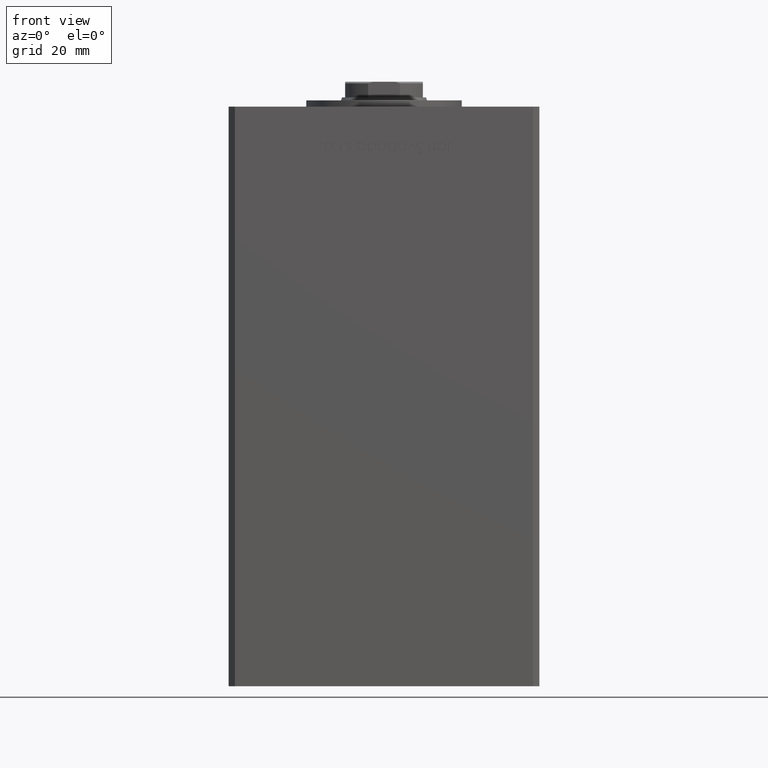
[diagram: clean part render]
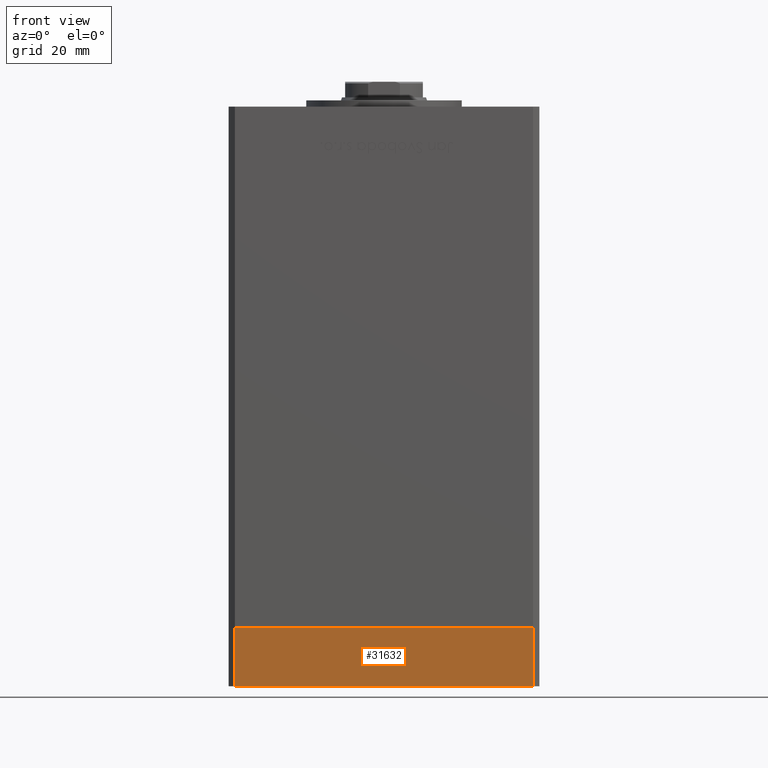
[diagram: same view with one face highlighted and labeled with its STEP entity id]
A machine part, front view. The second image highlights one B-rep face of the part: STEP entity #31632.
In plain terms, the highlighted planar face has unit normal (0, -1, -0).
Its self-contained STEP definition (entity closure, byte-faithful):
#1966 = PLANE ( 'NONE',  #13009 ) ;
#2115 = VECTOR ( 'NONE', #36635, 1000.000000000000000 ) ;
#2411 = EDGE_CURVE ( 'NONE', #48668, #36333, #42346, .T. ) ;
#3617 = VERTEX_POINT ( 'NONE', #29384 ) ;
#5126 = LINE ( 'NONE', #32960, #2115 ) ;
#5654 = FACE_OUTER_BOUND ( 'NONE', #31000, .T. ) ;
#5875 = DIRECTION ( 'NONE',  ( 1.000000000000000000, 0.000000000000000000, 0.000000000000000000 ) ) ;
#6439 = EDGE_CURVE ( 'NONE', #20973, #48668, #5126, .T. ) ;
#6991 = ORIENTED_EDGE ( 'NONE', *, *, #37669, .T. ) ;
#8752 = CARTESIAN_POINT ( 'NONE',  ( -47.99999999999999289, -43.50000000000001421, -19.00000000000000000 ) ) ;
#10090 = DIRECTION ( 'NONE',  ( 0.000000000000000000, -1.000000000000000000, 0.000000000000000000 ) ) ;
#10542 = VECTOR ( 'NONE', #32236, 1000.000000000000000 ) ;
#13009 = AXIS2_PLACEMENT_3D ( 'NONE', #49481, #10090, #33994 ) ;
#20605 = CARTESIAN_POINT ( 'NONE',  ( 47.99999999999999289, -43.50000000000001421, 0.000000000000000000 ) ) ;
#20973 = VERTEX_POINT ( 'NONE', #8752 ) ;
#22911 = CARTESIAN_POINT ( 'NONE',  ( -47.99999999999999289, -43.50000000000001421, 0.000000000000000000 ) ) ;
#25480 = VECTOR ( 'NONE', #5875, 1000.000000000000000 ) ;
#28538 = CARTESIAN_POINT ( 'NONE',  ( -47.99999999999999289, -43.50000000000001421, -19.00000000000000000 ) ) ;
#28877 = CARTESIAN_POINT ( 'NONE',  ( 47.99999999999999289, -43.50000000000001421, -19.00000000000000000 ) ) ;
#28944 = EDGE_CURVE ( 'NONE', #20973, #3617, #49249, .T. ) ;
#29384 = CARTESIAN_POINT ( 'NONE',  ( 47.99999999999999289, -43.50000000000001421, -19.00000000000000000 ) ) ;
#29577 = ORIENTED_EDGE ( 'NONE', *, *, #28944, .T. ) ;
#31000 = EDGE_LOOP ( 'NONE', ( #38943, #43675, #29577, #6991 ) ) ;
#31632 = ADVANCED_FACE ( 'NONE', ( #5654 ), #1966, .T. ) ;
#32236 = DIRECTION ( 'NONE',  ( 1.000000000000000000, 0.000000000000000000, 0.000000000000000000 ) ) ;
#32322 = LINE ( 'NONE', #28877, #49199 ) ;
#32960 = CARTESIAN_POINT ( 'NONE',  ( -47.99999999999999289, -43.50000000000001421, -19.00000000000000000 ) ) ;
#33994 = DIRECTION ( 'NONE',  ( 0.000000000000000000, -0.000000000000000000, -1.000000000000000000 ) ) ;
#35376 = CARTESIAN_POINT ( 'NONE',  ( -47.99999999999999289, -43.50000000000001421, 0.000000000000000000 ) ) ;
#36333 = VERTEX_POINT ( 'NONE', #20605 ) ;
#36635 = DIRECTION ( 'NONE',  ( 0.000000000000000000, 0.000000000000000000, 1.000000000000000000 ) ) ;
#37669 = EDGE_CURVE ( 'NONE', #3617, #36333, #32322, .T. ) ;
#38943 = ORIENTED_EDGE ( 'NONE', *, *, #2411, .F. ) ;
#42346 = LINE ( 'NONE', #22911, #25480 ) ;
#43675 = ORIENTED_EDGE ( 'NONE', *, *, #6439, .F. ) ;
#44881 = DIRECTION ( 'NONE',  ( 0.000000000000000000, 0.000000000000000000, 1.000000000000000000 ) ) ;
#48668 = VERTEX_POINT ( 'NONE', #35376 ) ;
#49199 = VECTOR ( 'NONE', #44881, 1000.000000000000000 ) ;
#49249 = LINE ( 'NONE', #28538, #10542 ) ;
#49481 = CARTESIAN_POINT ( 'NONE',  ( -47.99999999999999289, -43.50000000000001421, -19.00000000000000000 ) ) ;